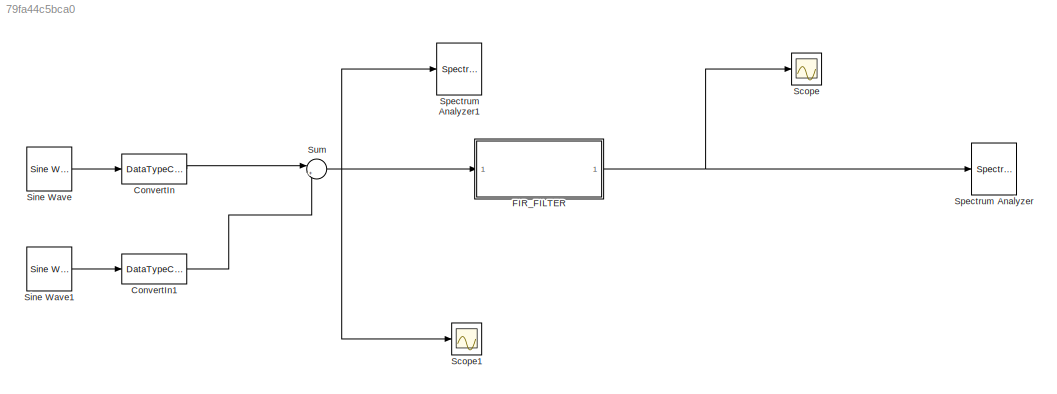
MODEL slx_79fa44c5bca0
KIND model
CONFIG AbsTol = auto
CONFIG EnableMultiTasking = off
CONFIG FixedStep = auto
CONFIG MaxStep = auto
CONFIG MinStep = auto
CONFIG RelTol = 1e-3
CONFIG SampleTimeConstraint = Unconstrained
CONFIG Solver = VariableStepAuto
CONFIG SolverName = VariableStepAuto
CONFIG StartTime = 0.0
CONFIG StopTime = 10.0
BLOCK [DataTypeConversion] ConvertIn
  OutDataTypeStr = fixdt(1, 11, 10)
  RndMeth = Nearest
BLOCK [DataTypeConversion] ConvertIn1
  OutDataTypeStr = fixdt(1,11,10)
  RndMeth = Nearest
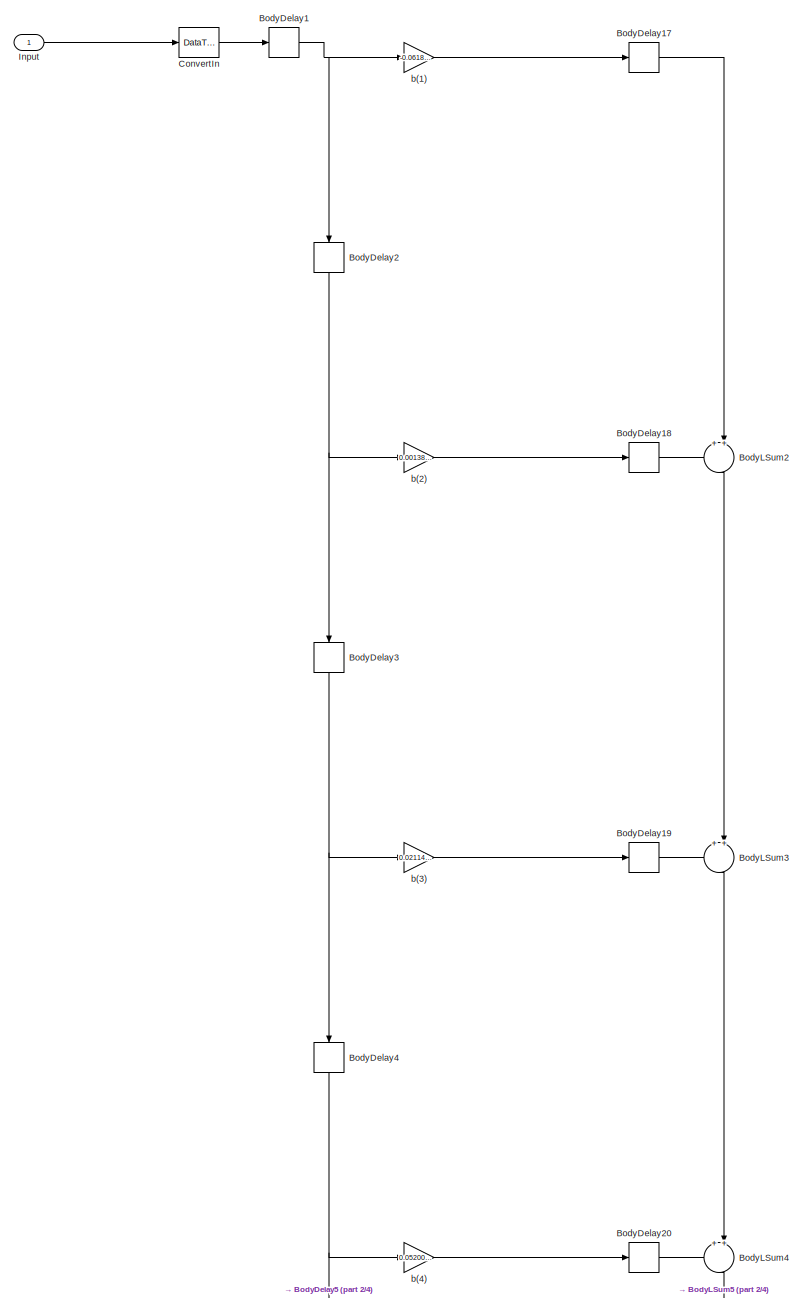
[diagram: FIR_FILTER - part 1/4, full width, top band]
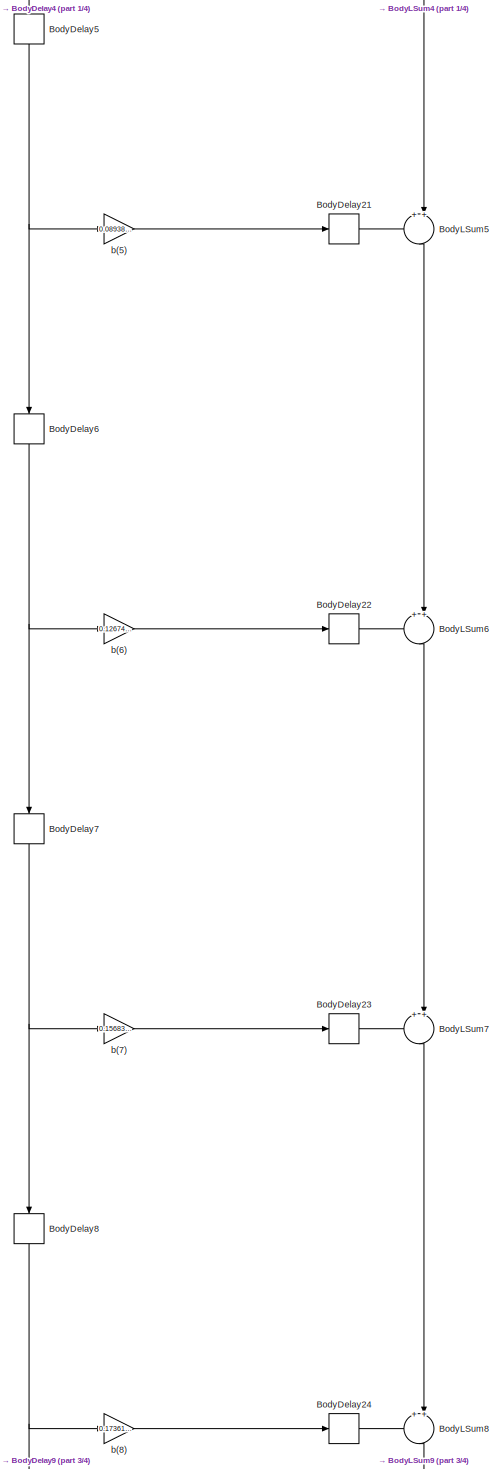
[diagram: FIR_FILTER - part 2/4, central region]
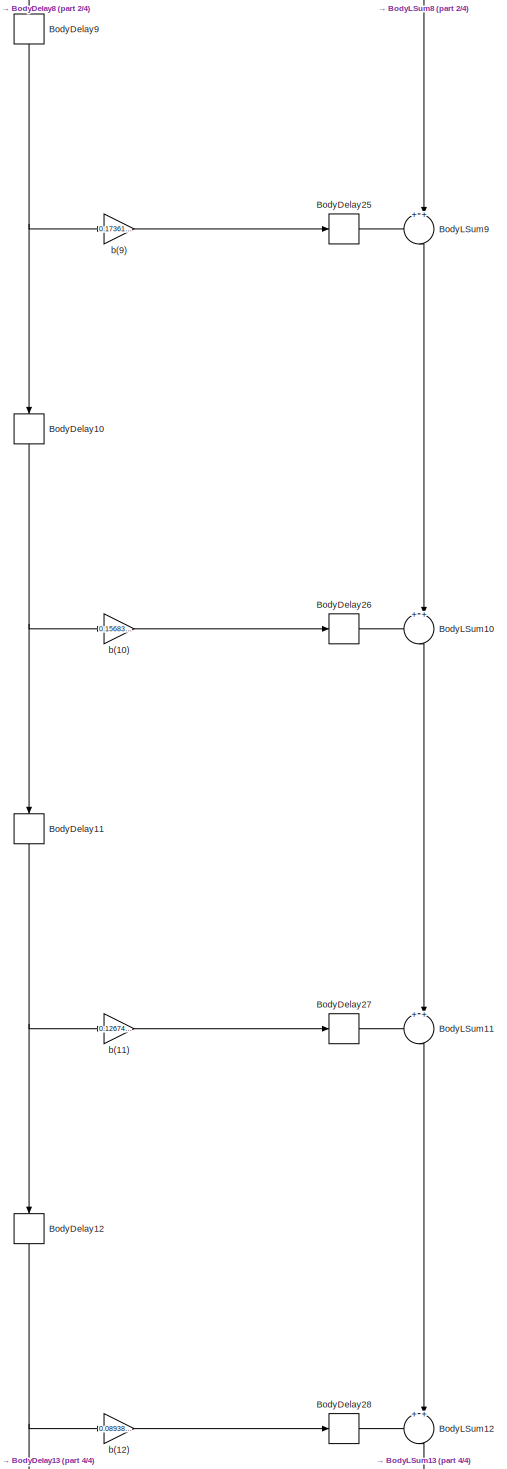
[diagram: FIR_FILTER - part 3/4, central region]
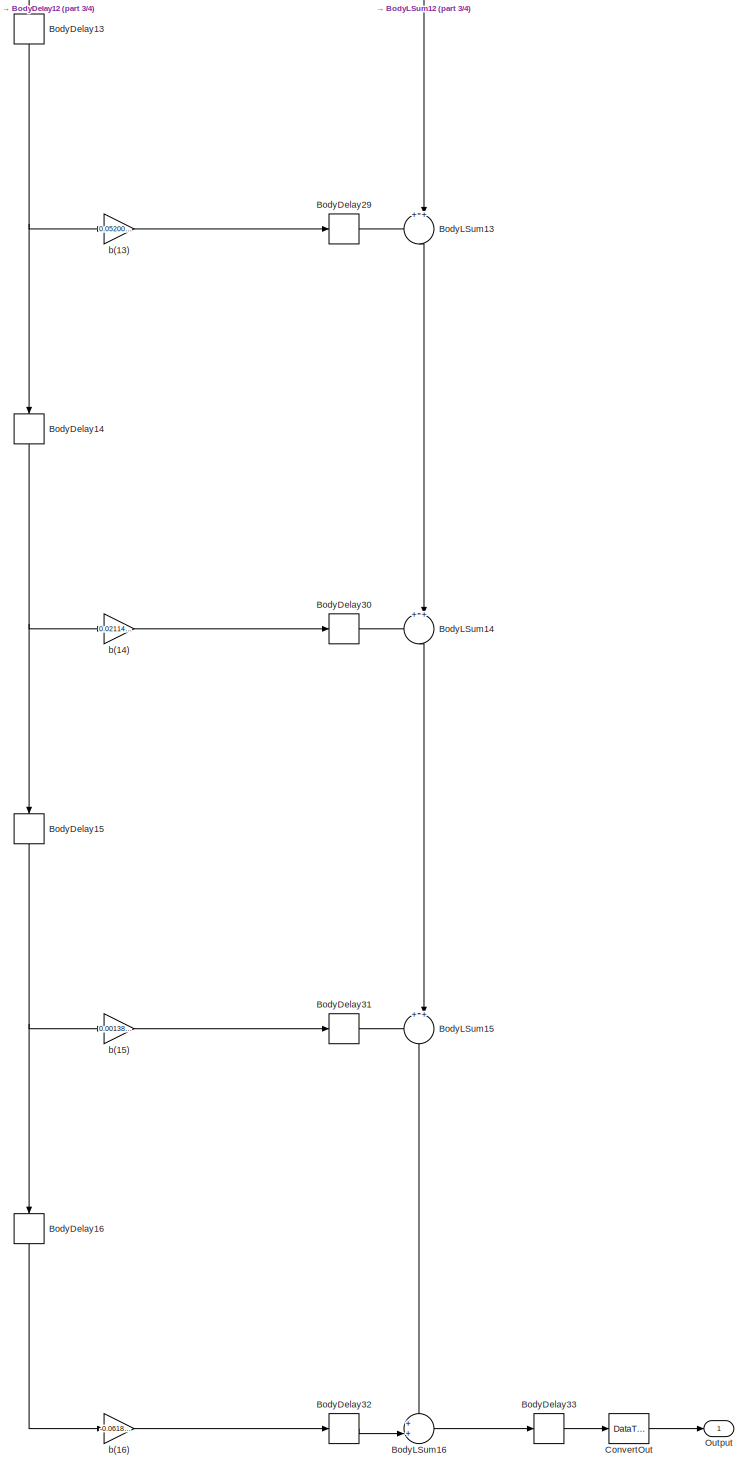
[diagram: FIR_FILTER - part 4/4, bottom center region]
BLOCK [SubSystem] FIR_FILTER
  ErrorFcn = dspFilterRealizedInBasicElemsAlgLoopErrFcnCallback
  Ports = [1, 1]
  RequestExecContextInheritance = off
  Tag = FilterWizardSubSystem
  UserDataPersistent = on
BLOCK [Delay] FIR_FILTER/BodyDelay1
  DelayLength = 1
  InitialCondition = 0
  InputPortMap = u0
  Ports = [1, 1]
BLOCK [Delay] FIR_FILTER/BodyDelay10
  DelayLength = 1
  InitialCondition = 0
  InputPortMap = u0
  Ports = [1, 1]
BLOCK [Delay] FIR_FILTER/BodyDelay11
  DelayLength = 1
  InitialCondition = 0
  InputPortMap = u0
  Ports = [1, 1]
BLOCK [Delay] FIR_FILTER/BodyDelay12
  DelayLength = 1
  InitialCondition = 0
  InputPortMap = u0
  Ports = [1, 1]
BLOCK [Delay] FIR_FILTER/BodyDelay13
  DelayLength = 1
  InitialCondition = 0
  InputPortMap = u0
  Ports = [1, 1]
BLOCK [Delay] FIR_FILTER/BodyDelay14
  DelayLength = 1
  InitialCondition = 0
  InputPortMap = u0
  Ports = [1, 1]
BLOCK [Delay] FIR_FILTER/BodyDelay15
  DelayLength = 1
  InitialCondition = 0
  InputPortMap = u0
  Ports = [1, 1]
BLOCK [Delay] FIR_FILTER/BodyDelay16
  DelayLength = 1
  InitialCondition = 0
  InputPortMap = u0
  Ports = [1, 1]
BLOCK [Delay] FIR_FILTER/BodyDelay17
  DelayLength = 1
  InitialCondition = 0
  InputPortMap = u0
  Ports = [1, 1]
BLOCK [Delay] FIR_FILTER/BodyDelay18
  DelayLength = 1
  InitialCondition = 0
  InputPortMap = u0
  Ports = [1, 1]
BLOCK [Delay] FIR_FILTER/BodyDelay19
  DelayLength = 1
  InitialCondition = 0
  InputPortMap = u0
  Ports = [1, 1]
BLOCK [Delay] FIR_FILTER/BodyDelay2
  DelayLength = 1
  InitialCondition = 0
  InputPortMap = u0
  Ports = [1, 1]
BLOCK [Delay] FIR_FILTER/BodyDelay20
  DelayLength = 1
  InitialCondition = 0
  InputPortMap = u0
  Ports = [1, 1]
BLOCK [Delay] FIR_FILTER/BodyDelay21
  DelayLength = 1
  InitialCondition = 0
  InputPortMap = u0
  Ports = [1, 1]
BLOCK [Delay] FIR_FILTER/BodyDelay22
  DelayLength = 1
  InitialCondition = 0
  InputPortMap = u0
  Ports = [1, 1]
BLOCK [Delay] FIR_FILTER/BodyDelay23
  DelayLength = 1
  InitialCondition = 0
  InputPortMap = u0
  Ports = [1, 1]
BLOCK [Delay] FIR_FILTER/BodyDelay24
  DelayLength = 1
  InitialCondition = 0
  InputPortMap = u0
  Ports = [1, 1]
BLOCK [Delay] FIR_FILTER/BodyDelay25
  DelayLength = 1
  InitialCondition = 0
  InputPortMap = u0
  Ports = [1, 1]
BLOCK [Delay] FIR_FILTER/BodyDelay26
  DelayLength = 1
  InitialCondition = 0
  InputPortMap = u0
  Ports = [1, 1]
BLOCK [Delay] FIR_FILTER/BodyDelay27
  DelayLength = 1
  InitialCondition = 0
  InputPortMap = u0
  Ports = [1, 1]
BLOCK [Delay] FIR_FILTER/BodyDelay28
  DelayLength = 1
  InitialCondition = 0
  InputPortMap = u0
  Ports = [1, 1]
BLOCK [Delay] FIR_FILTER/BodyDelay29
  DelayLength = 1
  InitialCondition = 0
  InputPortMap = u0
  Ports = [1, 1]
BLOCK [Delay] FIR_FILTER/BodyDelay3
  DelayLength = 1
  InitialCondition = 0
  InputPortMap = u0
  Ports = [1, 1]
BLOCK [Delay] FIR_FILTER/BodyDelay30
  DelayLength = 1
  InitialCondition = 0
  InputPortMap = u0
  Ports = [1, 1]
BLOCK [Delay] FIR_FILTER/BodyDelay31
  DelayLength = 1
  InitialCondition = 0
  InputPortMap = u0
  Ports = [1, 1]
BLOCK [Delay] FIR_FILTER/BodyDelay32
  DelayLength = 1
  InitialCondition = 0
  InputPortMap = u0
  Ports = [1, 1]
BLOCK [Delay] FIR_FILTER/BodyDelay33
  DelayLength = 1
  InitialCondition = 0
  InputPortMap = u0
  Ports = [1, 1]
BLOCK [Delay] FIR_FILTER/BodyDelay4
  DelayLength = 1
  InitialCondition = 0
  InputPortMap = u0
  Ports = [1, 1]
BLOCK [Delay] FIR_FILTER/BodyDelay5
  DelayLength = 1
  InitialCondition = 0
  InputPortMap = u0
  Ports = [1, 1]
BLOCK [Delay] FIR_FILTER/BodyDelay6
  DelayLength = 1
  InitialCondition = 0
  InputPortMap = u0
  Ports = [1, 1]
BLOCK [Delay] FIR_FILTER/BodyDelay7
  DelayLength = 1
  InitialCondition = 0
  InputPortMap = u0
  Ports = [1, 1]
BLOCK [Delay] FIR_FILTER/BodyDelay8
  DelayLength = 1
  InitialCondition = 0
  InputPortMap = u0
  Ports = [1, 1]
BLOCK [Delay] FIR_FILTER/BodyDelay9
  DelayLength = 1
  InitialCondition = 0
  InputPortMap = u0
  Ports = [1, 1]
BLOCK [Sum] FIR_FILTER/BodyLSum10
  AccumDataTypeStr = fixdt(1,28,26)
  IconShape = round
  InputSameDT = off
  Inputs = ++|
  OutDataTypeStr = fixdt(1,28,27)
  Ports = [2, 1]
BLOCK [Sum] FIR_FILTER/BodyLSum11
  AccumDataTypeStr = fixdt(1,28,26)
  IconShape = round
  InputSameDT = off
  Inputs = ++|
  OutDataTypeStr = fixdt(1,28,27)
  Ports = [2, 1]
BLOCK [Sum] FIR_FILTER/BodyLSum12
  AccumDataTypeStr = fixdt(1,28,26)
  IconShape = round
  InputSameDT = off
  Inputs = ++|
  OutDataTypeStr = fixdt(1,28,27)
  Ports = [2, 1]
BLOCK [Sum] FIR_FILTER/BodyLSum13
  AccumDataTypeStr = fixdt(1,28,26)
  IconShape = round
  InputSameDT = off
  Inputs = ++|
  OutDataTypeStr = fixdt(1,28,27)
  Ports = [2, 1]
BLOCK [Sum] FIR_FILTER/BodyLSum14
  AccumDataTypeStr = fixdt(1,28,26)
  IconShape = round
  InputSameDT = off
  Inputs = ++|
  OutDataTypeStr = fixdt(1,28,27)
  Ports = [2, 1]
BLOCK [Sum] FIR_FILTER/BodyLSum15
  AccumDataTypeStr = fixdt(1,28,26)
  IconShape = round
  InputSameDT = off
  Inputs = ++|
  OutDataTypeStr = fixdt(1,28,27)
  Ports = [2, 1]
BLOCK [Sum] FIR_FILTER/BodyLSum16
  AccumDataTypeStr = fixdt(1,28,26)
  IconShape = round
  InputSameDT = off
  Inputs = ++|
  OutDataTypeStr = fixdt(1,28,27)
  Ports = [2, 1]
BLOCK [Sum] FIR_FILTER/BodyLSum2
  AccumDataTypeStr = fixdt(1,28,26)
  IconShape = round
  InputSameDT = off
  Inputs = ++|
  OutDataTypeStr = fixdt(1,28,27)
  Ports = [2, 1]
BLOCK [Sum] FIR_FILTER/BodyLSum3
  AccumDataTypeStr = fixdt(1,28,26)
  IconShape = round
  InputSameDT = off
  Inputs = ++|
  OutDataTypeStr = fixdt(1,28,27)
  Ports = [2, 1]
BLOCK [Sum] FIR_FILTER/BodyLSum4
  AccumDataTypeStr = fixdt(1,28,26)
  IconShape = round
  InputSameDT = off
  Inputs = ++|
  OutDataTypeStr = fixdt(1,28,27)
  Ports = [2, 1]
BLOCK [Sum] FIR_FILTER/BodyLSum5
  AccumDataTypeStr = fixdt(1,28,26)
  IconShape = round
  InputSameDT = off
  Inputs = ++|
  OutDataTypeStr = fixdt(1,28,27)
  Ports = [2, 1]
BLOCK [Sum] FIR_FILTER/BodyLSum6
  AccumDataTypeStr = fixdt(1,28,26)
  IconShape = round
  InputSameDT = off
  Inputs = ++|
  OutDataTypeStr = fixdt(1,28,27)
  Ports = [2, 1]
BLOCK [Sum] FIR_FILTER/BodyLSum7
  AccumDataTypeStr = fixdt(1,28,26)
  IconShape = round
  InputSameDT = off
  Inputs = ++|
  OutDataTypeStr = fixdt(1,28,27)
  Ports = [2, 1]
BLOCK [Sum] FIR_FILTER/BodyLSum8
  AccumDataTypeStr = fixdt(1,28,26)
  IconShape = round
  InputSameDT = off
  Inputs = ++|
  OutDataTypeStr = fixdt(1,28,27)
  Ports = [2, 1]
BLOCK [Sum] FIR_FILTER/BodyLSum9
  AccumDataTypeStr = fixdt(1,28,26)
  IconShape = round
  InputSameDT = off
  Inputs = ++|
  OutDataTypeStr = fixdt(1,28,27)
  Ports = [2, 1]
BLOCK [DataTypeConversion] FIR_FILTER/ConvertIn
  OutDataTypeStr = fixdt(1,12,11)
  RndMeth = Nearest
BLOCK [DataTypeConversion] FIR_FILTER/ConvertOut
  OutDataTypeStr = fixdt(1,28,27)
  RndMeth = Floor
BLOCK [Inport] FIR_FILTER/Input
  IconDisplay = Port number
BLOCK [Outport] FIR_FILTER/Output
  IconDisplay = Port number
BLOCK [Gain] FIR_FILTER/b(1)
  Gain = -0.0618882177052239024
  OutDataTypeStr = fixdt(1,28,27)
  ParamDataTypeStr = fixdt(1,16,15)
BLOCK [Gain] FIR_FILTER/b(10)
  Gain = 0.156831506489949868
  OutDataTypeStr = fixdt(1,28,27)
  ParamDataTypeStr = fixdt(1,16,15)
BLOCK [Gain] FIR_FILTER/b(11)
  Gain = 0.126743043388984011
  OutDataTypeStr = fixdt(1,28,27)
  ParamDataTypeStr = fixdt(1,16,15)
BLOCK [Gain] FIR_FILTER/b(12)
  Gain = 0.0893893934460206346
  OutDataTypeStr = fixdt(1,28,27)
  ParamDataTypeStr = fixdt(1,16,15)
BLOCK [Gain] FIR_FILTER/b(13)
  Gain = 0.0520064520704971028
  OutDataTypeStr = fixdt(1,28,27)
  ParamDataTypeStr = fixdt(1,16,15)
BLOCK [Gain] FIR_FILTER/b(14)
  Gain = 0.0211417649844564126
  OutDataTypeStr = fixdt(1,28,27)
  ParamDataTypeStr = fixdt(1,16,15)
BLOCK [Gain] FIR_FILTER/b(15)
  Gain = 0.00138246382291724867
  OutDataTypeStr = fixdt(1,28,27)
  ParamDataTypeStr = fixdt(1,16,15)
BLOCK [Gain] FIR_FILTER/b(16)
  Gain = -0.0618882177052239024
  OutDataTypeStr = fixdt(1,28,27)
  ParamDataTypeStr = fixdt(1,16,15)
BLOCK [Gain] FIR_FILTER/b(2)
  Gain = 0.00138246382291724867
  OutDataTypeStr = fixdt(1,28,27)
  ParamDataTypeStr = fixdt(1,16,15)
BLOCK [Gain] FIR_FILTER/b(3)
  Gain = 0.0211417649844564126
  OutDataTypeStr = fixdt(1,28,27)
  ParamDataTypeStr = fixdt(1,16,15)
BLOCK [Gain] FIR_FILTER/b(4)
  Gain = 0.0520064520704971028
  OutDataTypeStr = fixdt(1,28,27)
  ParamDataTypeStr = fixdt(1,16,15)
BLOCK [Gain] FIR_FILTER/b(5)
  Gain = 0.0893893934460206346
  OutDataTypeStr = fixdt(1,28,27)
  ParamDataTypeStr = fixdt(1,16,15)
BLOCK [Gain] FIR_FILTER/b(6)
  Gain = 0.126743043388984011
  OutDataTypeStr = fixdt(1,28,27)
  ParamDataTypeStr = fixdt(1,16,15)
BLOCK [Gain] FIR_FILTER/b(7)
  Gain = 0.156831506489949868
  OutDataTypeStr = fixdt(1,28,27)
  ParamDataTypeStr = fixdt(1,16,15)
BLOCK [Gain] FIR_FILTER/b(8)
  Gain = 0.173616470901764963
  OutDataTypeStr = fixdt(1,28,27)
  ParamDataTypeStr = fixdt(1,16,15)
BLOCK [Gain] FIR_FILTER/b(9)
  Gain = 0.173616470901764963
  OutDataTypeStr = fixdt(1,28,27)
  ParamDataTypeStr = fixdt(1,16,15)
BLOCK [Scope] Scope
  Floating = off
  NumInputPorts = 1
  Ports = [1]
  ScopeSpecificationString = Simulink.scopes.TimeScopeBlockCfg('CurrentConfiguration', extmgr.ConfigurationSet(extmgr.Configuration('Core','General UI',true),extmgr.Configuration('Core','Source UI',true),extmgr.Configuration('Sources','WiredSimulink',true),extmgr.Configuration('Visuals','Time Domain',true,'SerializedDisplays',{struct('MinYLimReal','-0.64409','MaxYLimReal','0.69188','YLabelReal','','MinYLimMag','0.00000','MaxY...<+1704ch>
BLOCK [Scope] Scope1
  Floating = off
  NumInputPorts = 1
  Ports = [1]
  ScopeSpecificationString = Simulink.scopes.TimeScopeBlockCfg('CurrentConfiguration', extmgr.ConfigurationSet(extmgr.Configuration('Core','General UI',true),extmgr.Configuration('Core','Source UI',true),extmgr.Configuration('Sources','WiredSimulink',true,'DataLoggingVariableName','ScopeData1'),extmgr.Configuration('Visuals','Time Domain',true,'SerializedDisplays',{struct('MinYLimReal','-0.51328','MaxYLimReal','1.18881','YLab...<+1435ch>
BLOCK [Reference] Sine Wave  REF=dspsrcs4/Sine Wave
  Ports = [0, 1]
  SourceBlock = dspsrcs4/Sine Wave
  SourceProductBaseCode = DS
  SourceProductName = DSP System Toolbox
  SourceType = Sine Wave
BLOCK [Reference] Sine Wave1  REF=dspsrcs4/Sine Wave
  Ports = [0, 1]
  SourceBlock = dspsrcs4/Sine Wave
  SourceProductBaseCode = DS
  SourceProductName = DSP System Toolbox
  SourceType = Sine Wave
BLOCK [SpectrumAnalyzer] Spectrum Analyzer
  Ports = [1]
  ScopeSpecificationString = spbscopes.SpectrumAnalyzerBlockCfg('CurrentConfiguration', extmgr.ConfigurationSet(extmgr.Configuration('Core','General UI',true),extmgr.Configuration('Core','Source UI',true),extmgr.Configuration('Sources','WiredSimulink',true),extmgr.Configuration('Visuals','Spectrum',true,'AxesProperties',struct('Color',{[0 0 0],[0 0 0]},'XColor',{[0.686274509803922 0.686274509803922 0.686274509803922],[0.68627...<+2561ch>
BLOCK [SpectrumAnalyzer] Spectrum Analyzer1
  Ports = [1]
  ScopeSpecificationString = spbscopes.SpectrumAnalyzerBlockCfg('CurrentConfiguration', extmgr.ConfigurationSet(extmgr.Configuration('Core','General UI',true),extmgr.Configuration('Core','Source UI',true),extmgr.Configuration('Sources','WiredSimulink',true),extmgr.Configuration('Visuals','Spectrum',true,'AxesProperties',struct('Color',{[0 0 0],[0 0 0]},'XColor',{[0.686274509803922 0.686274509803922 0.686274509803922],[0.68627...<+2586ch>
BLOCK [Sum] Sum
  IconShape = round
  Inputs = |++
  OutDataTypeStr = fixdt(1,12,11)
  Ports = [2, 1]
LINE ConvertIn1:1 -> Sum:2
LINE ConvertIn:1 -> Sum:1
NET FIR_FILTER/BodyDelay10:1 -> FIR_FILTER/BodyDelay11:1, FIR_FILTER/b(10):1
NET FIR_FILTER/BodyDelay11:1 -> FIR_FILTER/BodyDelay12:1, FIR_FILTER/b(11):1
NET FIR_FILTER/BodyDelay12:1 -> FIR_FILTER/BodyDelay13:1, FIR_FILTER/b(12):1
NET FIR_FILTER/BodyDelay13:1 -> FIR_FILTER/BodyDelay14:1, FIR_FILTER/b(13):1
NET FIR_FILTER/BodyDelay14:1 -> FIR_FILTER/BodyDelay15:1, FIR_FILTER/b(14):1
NET FIR_FILTER/BodyDelay15:1 -> FIR_FILTER/BodyDelay16:1, FIR_FILTER/b(15):1
LINE FIR_FILTER/BodyDelay16:1 -> FIR_FILTER/b(16):1
LINE FIR_FILTER/BodyDelay17:1 -> FIR_FILTER/BodyLSum2:2
LINE FIR_FILTER/BodyDelay18:1 -> FIR_FILTER/BodyLSum2:1
LINE FIR_FILTER/BodyDelay19:1 -> FIR_FILTER/BodyLSum3:1
NET FIR_FILTER/BodyDelay1:1 -> FIR_FILTER/BodyDelay2:1, FIR_FILTER/b(1):1
LINE FIR_FILTER/BodyDelay20:1 -> FIR_FILTER/BodyLSum4:1
LINE FIR_FILTER/BodyDelay21:1 -> FIR_FILTER/BodyLSum5:1
LINE FIR_FILTER/BodyDelay22:1 -> FIR_FILTER/BodyLSum6:1
LINE FIR_FILTER/BodyDelay23:1 -> FIR_FILTER/BodyLSum7:1
LINE FIR_FILTER/BodyDelay24:1 -> FIR_FILTER/BodyLSum8:1
LINE FIR_FILTER/BodyDelay25:1 -> FIR_FILTER/BodyLSum9:1
LINE FIR_FILTER/BodyDelay26:1 -> FIR_FILTER/BodyLSum10:1
LINE FIR_FILTER/BodyDelay27:1 -> FIR_FILTER/BodyLSum11:1
LINE FIR_FILTER/BodyDelay28:1 -> FIR_FILTER/BodyLSum12:1
LINE FIR_FILTER/BodyDelay29:1 -> FIR_FILTER/BodyLSum13:1
NET FIR_FILTER/BodyDelay2:1 -> FIR_FILTER/BodyDelay3:1, FIR_FILTER/b(2):1
LINE FIR_FILTER/BodyDelay30:1 -> FIR_FILTER/BodyLSum14:1
LINE FIR_FILTER/BodyDelay31:1 -> FIR_FILTER/BodyLSum15:1
LINE FIR_FILTER/BodyDelay32:1 -> FIR_FILTER/BodyLSum16:2
LINE FIR_FILTER/BodyDelay33:1 -> FIR_FILTER/ConvertOut:1
NET FIR_FILTER/BodyDelay3:1 -> FIR_FILTER/BodyDelay4:1, FIR_FILTER/b(3):1
NET FIR_FILTER/BodyDelay4:1 -> FIR_FILTER/BodyDelay5:1, FIR_FILTER/b(4):1
NET FIR_FILTER/BodyDelay5:1 -> FIR_FILTER/BodyDelay6:1, FIR_FILTER/b(5):1
NET FIR_FILTER/BodyDelay6:1 -> FIR_FILTER/BodyDelay7:1, FIR_FILTER/b(6):1
NET FIR_FILTER/BodyDelay7:1 -> FIR_FILTER/BodyDelay8:1, FIR_FILTER/b(7):1
NET FIR_FILTER/BodyDelay8:1 -> FIR_FILTER/BodyDelay9:1, FIR_FILTER/b(8):1
NET FIR_FILTER/BodyDelay9:1 -> FIR_FILTER/BodyDelay10:1, FIR_FILTER/b(9):1
LINE FIR_FILTER/BodyLSum10:1 -> FIR_FILTER/BodyLSum11:2
LINE FIR_FILTER/BodyLSum11:1 -> FIR_FILTER/BodyLSum12:2
LINE FIR_FILTER/BodyLSum12:1 -> FIR_FILTER/BodyLSum13:2
LINE FIR_FILTER/BodyLSum13:1 -> FIR_FILTER/BodyLSum14:2
LINE FIR_FILTER/BodyLSum14:1 -> FIR_FILTER/BodyLSum15:2
LINE FIR_FILTER/BodyLSum15:1 -> FIR_FILTER/BodyLSum16:1
LINE FIR_FILTER/BodyLSum16:1 -> FIR_FILTER/BodyDelay33:1
LINE FIR_FILTER/BodyLSum2:1 -> FIR_FILTER/BodyLSum3:2
LINE FIR_FILTER/BodyLSum3:1 -> FIR_FILTER/BodyLSum4:2
LINE FIR_FILTER/BodyLSum4:1 -> FIR_FILTER/BodyLSum5:2
LINE FIR_FILTER/BodyLSum5:1 -> FIR_FILTER/BodyLSum6:2
LINE FIR_FILTER/BodyLSum6:1 -> FIR_FILTER/BodyLSum7:2
LINE FIR_FILTER/BodyLSum7:1 -> FIR_FILTER/BodyLSum8:2
LINE FIR_FILTER/BodyLSum8:1 -> FIR_FILTER/BodyLSum9:2
LINE FIR_FILTER/BodyLSum9:1 -> FIR_FILTER/BodyLSum10:2
LINE FIR_FILTER/ConvertIn:1 -> FIR_FILTER/BodyDelay1:1
LINE FIR_FILTER/ConvertOut:1 -> FIR_FILTER/Output:1
LINE FIR_FILTER/Input:1 -> FIR_FILTER/ConvertIn:1
LINE FIR_FILTER/b(1):1 -> FIR_FILTER/BodyDelay17:1
LINE FIR_FILTER/b(10):1 -> FIR_FILTER/BodyDelay26:1
LINE FIR_FILTER/b(11):1 -> FIR_FILTER/BodyDelay27:1
LINE FIR_FILTER/b(12):1 -> FIR_FILTER/BodyDelay28:1
LINE FIR_FILTER/b(13):1 -> FIR_FILTER/BodyDelay29:1
LINE FIR_FILTER/b(14):1 -> FIR_FILTER/BodyDelay30:1
LINE FIR_FILTER/b(15):1 -> FIR_FILTER/BodyDelay31:1
LINE FIR_FILTER/b(16):1 -> FIR_FILTER/BodyDelay32:1
LINE FIR_FILTER/b(2):1 -> FIR_FILTER/BodyDelay18:1
LINE FIR_FILTER/b(3):1 -> FIR_FILTER/BodyDelay19:1
LINE FIR_FILTER/b(4):1 -> FIR_FILTER/BodyDelay20:1
LINE FIR_FILTER/b(5):1 -> FIR_FILTER/BodyDelay21:1
LINE FIR_FILTER/b(6):1 -> FIR_FILTER/BodyDelay22:1
LINE FIR_FILTER/b(7):1 -> FIR_FILTER/BodyDelay23:1
LINE FIR_FILTER/b(8):1 -> FIR_FILTER/BodyDelay24:1
LINE FIR_FILTER/b(9):1 -> FIR_FILTER/BodyDelay25:1
NET FIR_FILTER:1 -> Scope:1, Spectrum Analyzer:1
LINE Sine Wave1:1 -> ConvertIn1:1
LINE Sine Wave:1 -> ConvertIn:1
NET Sum:1 -> FIR_FILTER:1, Scope1:1, Spectrum Analyzer1:1
note: NET lines group one-source signal fan-out (src -> all destinations, sorted); 1:1 wires keep LINE
